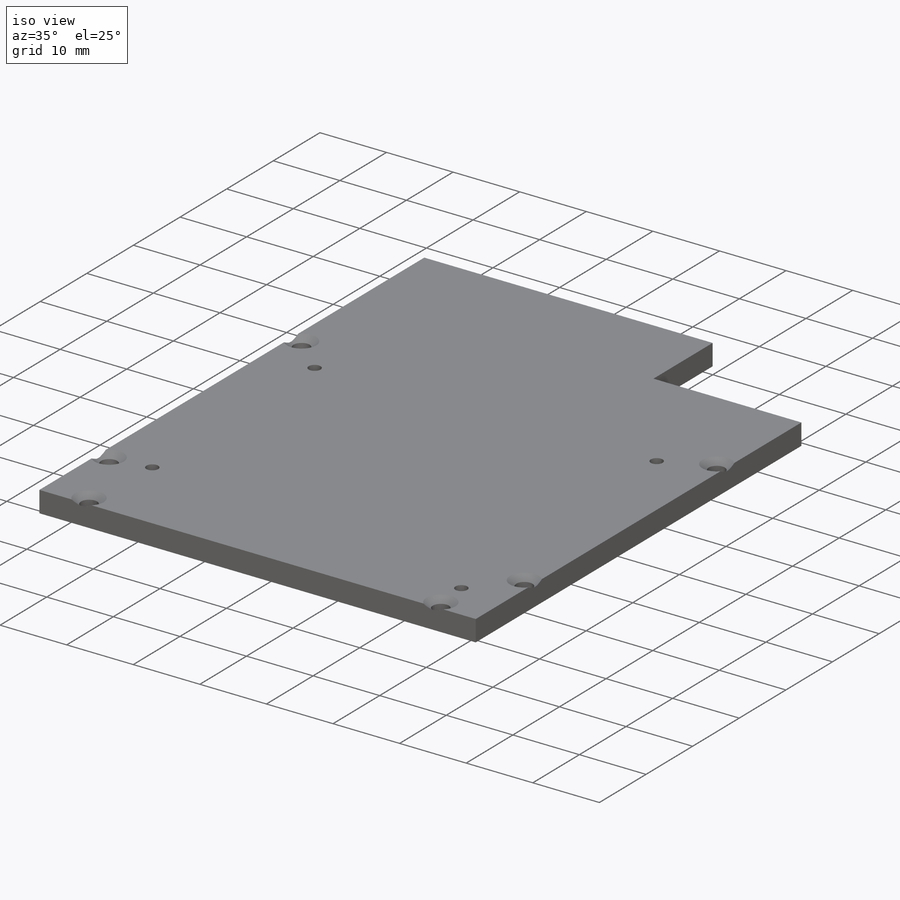
[diagram: iso view]
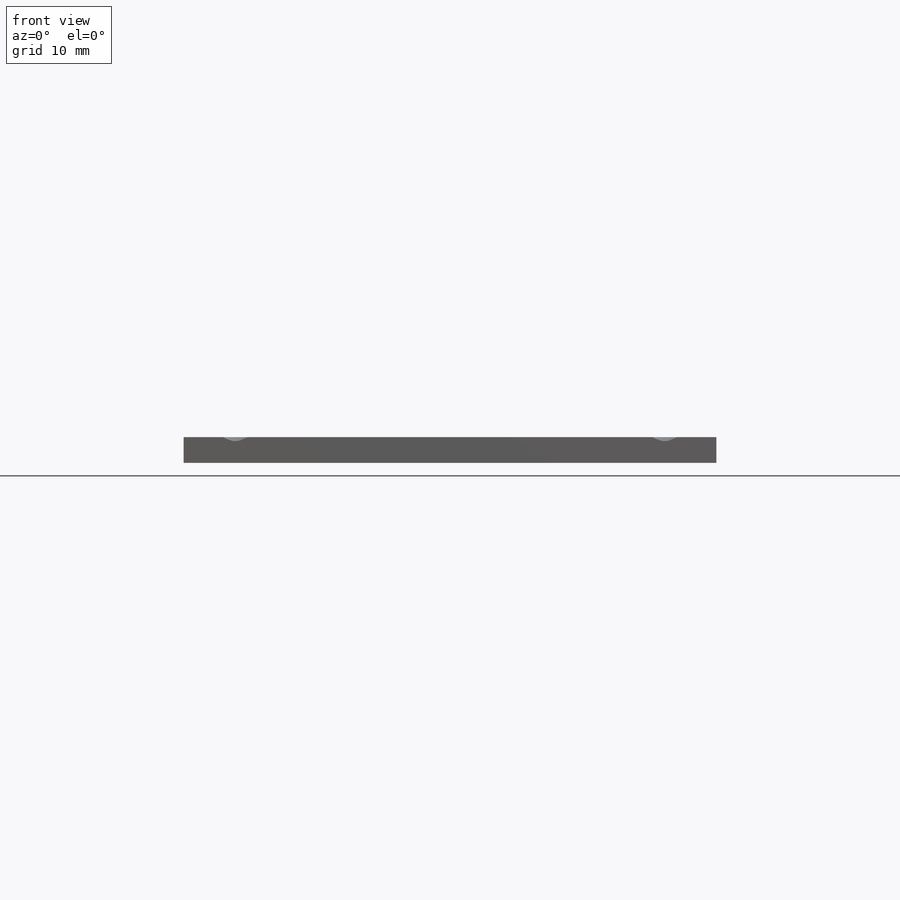
[diagram: front view]
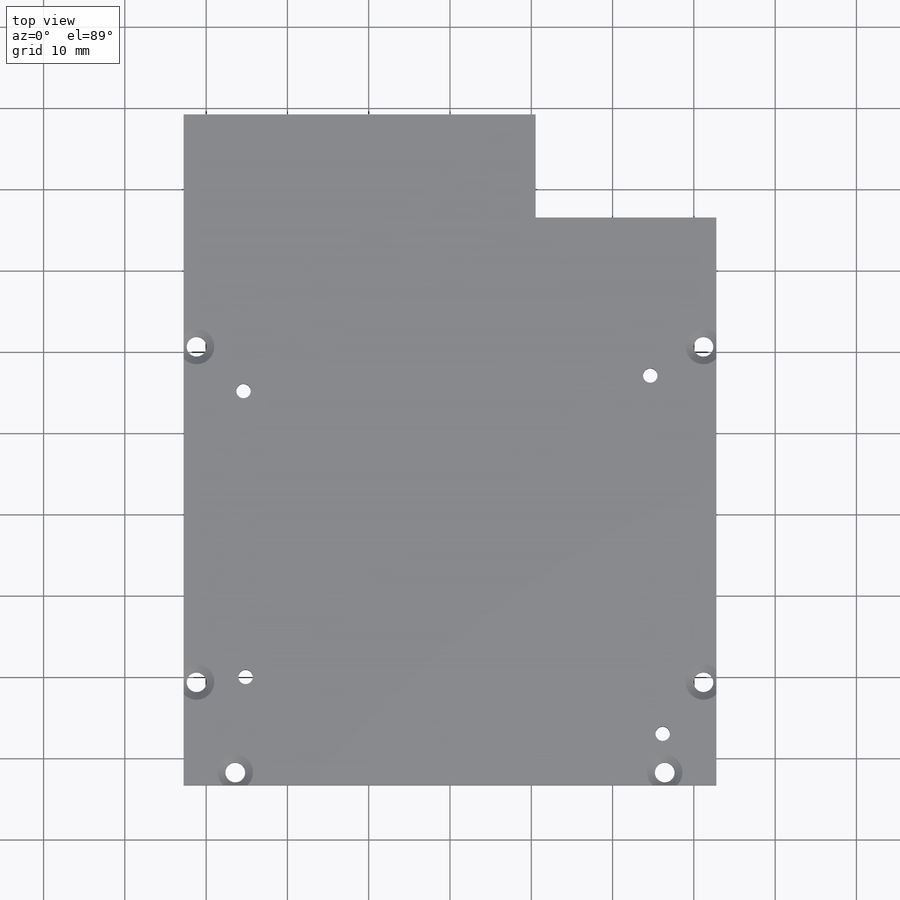
[diagram: top view]
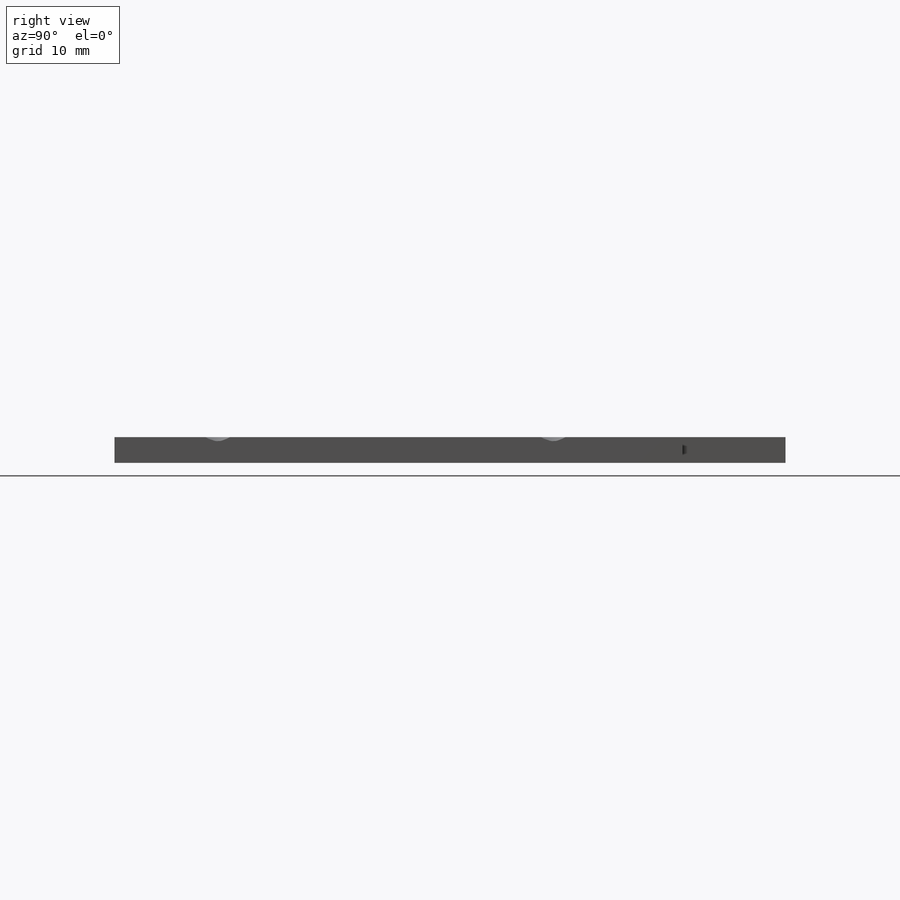
[diagram: right view]
SOLIDWORKS PART (.sldprt)
format: sldprt  version: not decoded by parser v0  size: 245,760 bytes
history: native  units: mm
features: sketch x6, hole x2, material x1, extrude x1, cut_extrude x1 (+11 scaffold rows collapsed)
feature tree (22):
  scaffold x11  (default folders/planes/origin — collapsed)
  material  "Delrin"
  sketch  "Sketch1"  dims[D1=65.532mm D2=32.766mm D3=82.55mm D4=33.3375mm]
  extrude  "Extrude1"  Depth=3.175mm
  hole  "CSK for #2 Flat Head Machine Screw (100)1"  Diameter=2.4384mm Depth=3.175mm
  sketch  "3DSketch1"  dims[c1.D1=6.35mm c1.D2=6.35mm c1.D3=1.5875mm c1.D4=1.5875mm c1.D5=1.5875mm c1.D6=1.5875mm c1.D7=1.5875mm c1.D8=1.5875mm c1.D9=~1.716565mm c1.D17=1.5875mm c1.D10=~1.544478mm c2.D9=1.5875mm c2.D11=~4.027518mm c3.D9=6.35mm c3.D12=~4.113561mm c4.D9=6.35mm c4.D13=0.0mm c5.D13=~13.504505mm c5.D9=12.7mm c5.D14=12.7mm c5.D15=12.7mm c5.D16=~13.246375mm c6.D9=12.7mm c7.D9=53.975mm c7.D10=53.975mm]
  sketch  "Sketch2"  dims[hole-wizard template sketch: 59 standard entries collapsed; hole parameters above]
  sketch  "Sketch3"  dims[D1=22.225mm D2=12.7mm]
  cut_extrude  "Cut-Extrude1"  [1 undecoded]
  hole  "Tap Drill for #2 Tap1"  Diameter=1.778mm Depth=6.35mm
  sketch  "3DSketch2"  dims[c1.D1=50.419mm c1.D2=~7.969004mm c1.D3=7.62mm c2.D3=~6.582505mm c2.D4=7.62mm c2.D2=6.35mm c3.D3=7.62mm c3.D4=7.366mm c3.D5=13.335mm c3.D6=48.514mm c3.D7=57.404mm c3.D8=58.928mm]
  sketch  "Sketch4"  dims[hole-wizard template sketch: 50 standard entries collapsed; hole parameters above]
decode coverage: 9 of 10 modeling features carry decoded parameters
note: ~ marks probable driven/reference dimensions
note: 1 parameter value undecoded
note: suppression state not decoded; provenance and decode notes live in map.json
